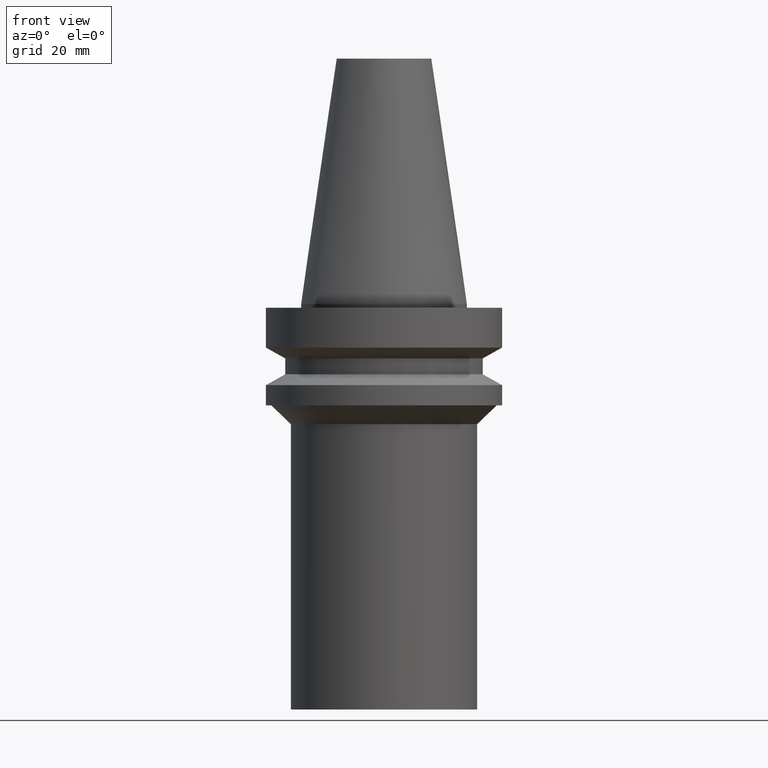
[diagram: clean part render]
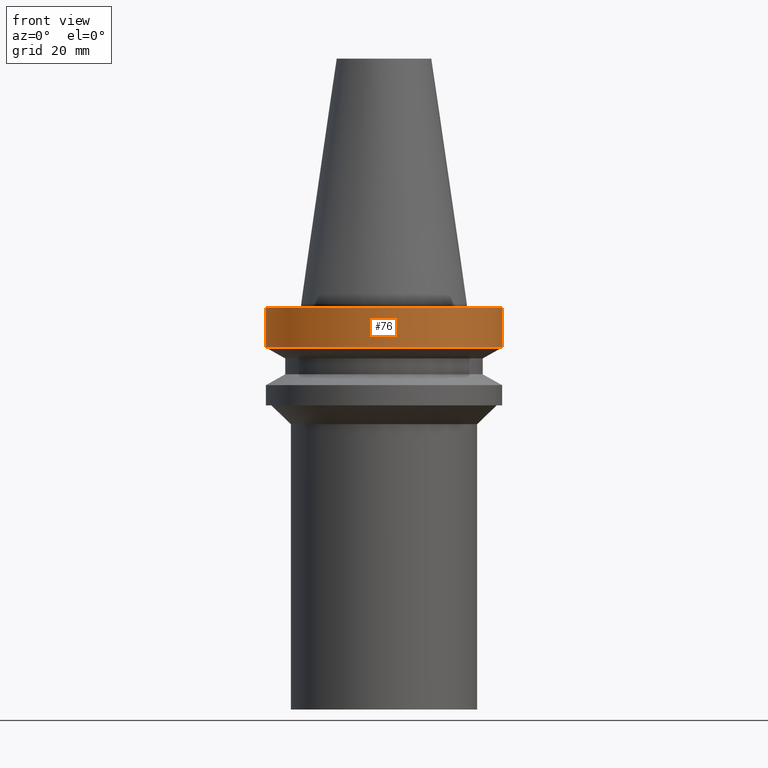
[diagram: same view with one face highlighted and labeled with its STEP entity id]
A machine part, front view. The second image highlights one B-rep face of the part: STEP entity #76.
In plain terms, the highlighted cylindrical surface (bore or boss wall) has radius 31.5 mm, axis along (-0, -0, 1).
Its self-contained STEP definition (entity closure, byte-faithful):
#76=ADVANCED_FACE('',(#92,#93),#94,.T.);
#92=FACE_BOUND('',#129,.T.);
#93=FACE_BOUND('',#130,.T.);
#94=CYLINDRICAL_SURFACE('',#131,31.5);
#129=EDGE_LOOP('',(#168));
#130=EDGE_LOOP('',(#169));
#131=AXIS2_PLACEMENT_3D('',#170,#171,#172);
#168=ORIENTED_EDGE('',*,*,#228,.F.);
#169=ORIENTED_EDGE('',*,*,#226,.T.);
#170=CARTESIAN_POINT('',(3.85763741731416E-016,7.71527483462832E-016,-6.3));
#171=DIRECTION('',(-6.12323399573677E-017,-1.22464679914735E-016,1.0));
#172=DIRECTION('',(-1.23259516440783E-032,1.0,1.22464679914735E-016));
#226=EDGE_CURVE('',#238,#238,#239,.T.);
#228=EDGE_CURVE('',#242,#242,#243,.T.);
#238=VERTEX_POINT('',#262);
#239=CIRCLE('',#263,31.5);
#242=VERTEX_POINT('',#266);
#243=CIRCLE('',#267,31.5);
#262=CARTESIAN_POINT('',(6.12323399573673E-017,31.5,-0.999999999999996));
#263=AXIS2_PLACEMENT_3D('',#286,#287,#288);
#266=CARTESIAN_POINT('',(7.10295143505464E-016,31.5,-11.6));
#267=AXIS2_PLACEMENT_3D('',#292,#293,#294);
#286=CARTESIAN_POINT('',(6.12323399573677E-017,1.22464679914735E-016,-1.0));
#287=DIRECTION('',(6.12323399573677E-017,1.22464679914735E-016,-1.0));
#288=DIRECTION('',(-1.23259516440783E-032,1.0,1.22464679914735E-016));
#292=CARTESIAN_POINT('',(7.10295143505465E-016,1.42059028701093E-015,-11.6));
#293=DIRECTION('',(6.12323399573677E-017,1.22464679914735E-016,-1.0));
#294=DIRECTION('',(-1.23259516440783E-032,1.0,1.22464679914735E-016));